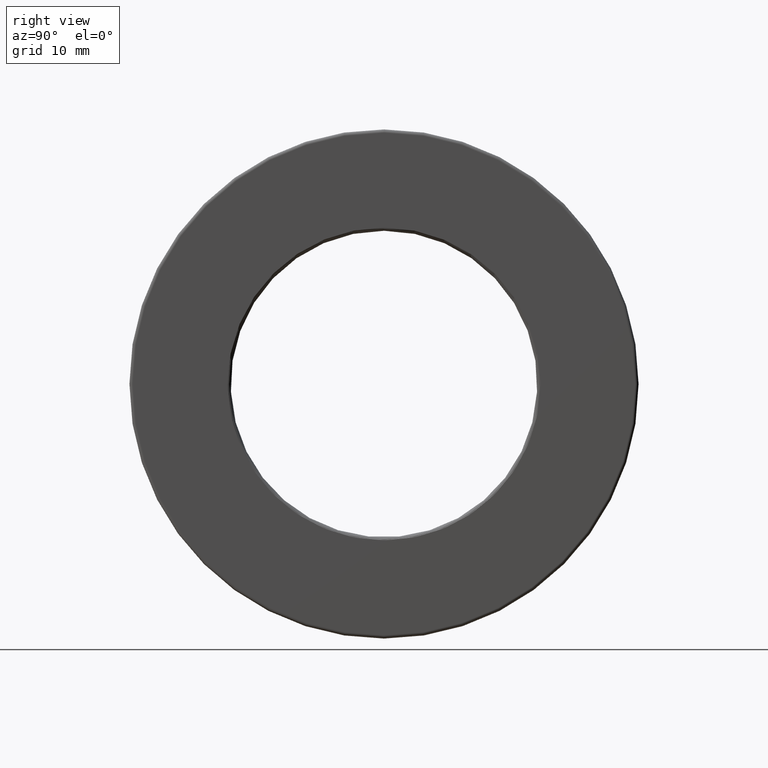
[diagram: clean part render]
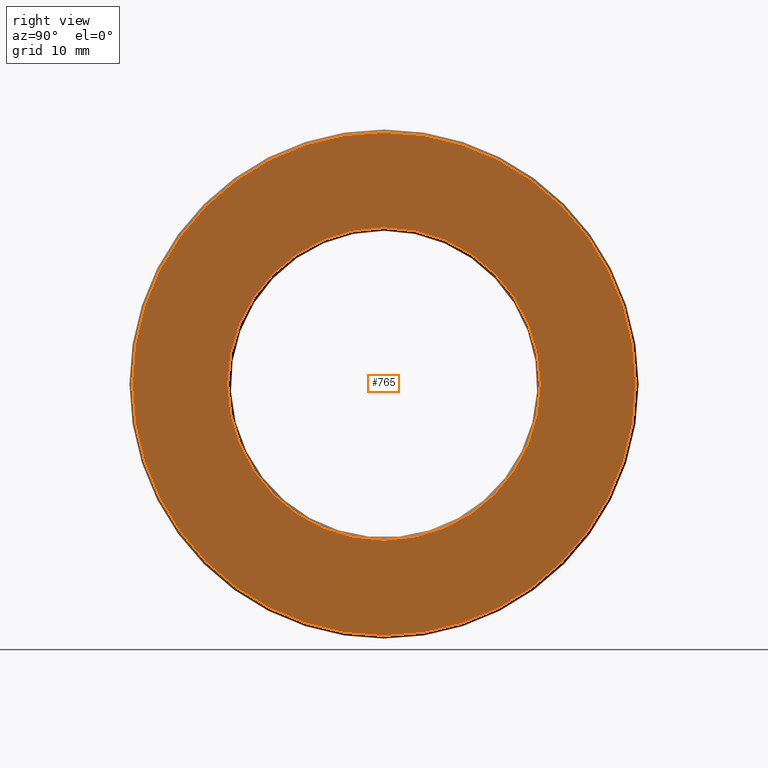
[diagram: same view with one face highlighted and labeled with its STEP entity id]
A machine part, right view. The second image highlights one B-rep face of the part: STEP entity #765.
In plain terms, the highlighted planar face has unit normal (1, 0, 0).
Its self-contained STEP definition (entity closure, byte-faithful):
#6 = CARTESIAN_POINT ( 'NONE',  ( 0.4060000000000001400, 0.0000000000000000000, 1.589375000000000900 ) ) ;
#66 = DIRECTION ( 'NONE',  ( 0.0000000000000000000, 0.0000000000000000000, 1.000000000000000000 ) ) ;
#117 = CARTESIAN_POINT ( 'NONE',  ( 0.4060000000000001400, 0.0000000000000000000, 0.9887500000000001300 ) ) ;
#145 = ORIENTED_EDGE ( 'NONE', *, *, #201, .F. ) ;
#201 = EDGE_CURVE ( 'NONE', #429, #429, #1237, .T. ) ;
#240 = EDGE_LOOP ( 'NONE', ( #1181 ) ) ;
#275 = DIRECTION ( 'NONE',  ( 1.000000000000000000, 0.0000000000000000000, 0.0000000000000000000 ) ) ;
#344 = EDGE_LOOP ( 'NONE', ( #145 ) ) ;
#370 = PLANE ( 'NONE',  #770 ) ;
#386 = CARTESIAN_POINT ( 'NONE',  ( 0.4060000000000001400, 0.0000000000000000000, 0.0000000000000000000 ) ) ;
#429 = VERTEX_POINT ( 'NONE', #6 ) ;
#472 = CARTESIAN_POINT ( 'NONE',  ( 0.4060000000000001400, 0.0000000000000000000, 0.0000000000000000000 ) ) ;
#533 = DIRECTION ( 'NONE',  ( -1.000000000000000000, -0.0000000000000000000, -0.0000000000000000000 ) ) ;
#542 = VERTEX_POINT ( 'NONE', #117 ) ;
#640 = CIRCLE ( 'NONE', #1110, 0.9887500000000001300 ) ;
#653 = FACE_OUTER_BOUND ( 'NONE', #344, .T. ) ;
#765 = ADVANCED_FACE ( 'NONE', ( #1090, #653 ), #370, .T. ) ;
#770 = AXIS2_PLACEMENT_3D ( 'NONE', #472, #275, #1187 ) ;
#1024 = AXIS2_PLACEMENT_3D ( 'NONE', #386, #1282, #66 ) ;
#1090 = FACE_BOUND ( 'NONE', #240, .T. ) ;
#1110 = AXIS2_PLACEMENT_3D ( 'NONE', #1121, #533, #1115 ) ;
#1115 = DIRECTION ( 'NONE',  ( 0.0000000000000000000, 0.0000000000000000000, 1.000000000000000000 ) ) ;
#1121 = CARTESIAN_POINT ( 'NONE',  ( 0.4060000000000001400, 0.0000000000000000000, 0.0000000000000000000 ) ) ;
#1181 = ORIENTED_EDGE ( 'NONE', *, *, #1303, .T. ) ;
#1187 = DIRECTION ( 'NONE',  ( 0.0000000000000000000, 0.0000000000000000000, -1.000000000000000000 ) ) ;
#1237 = CIRCLE ( 'NONE', #1024, 1.589375000000000900 ) ;
#1282 = DIRECTION ( 'NONE',  ( -1.000000000000000000, -0.0000000000000000000, -0.0000000000000000000 ) ) ;
#1303 = EDGE_CURVE ( 'NONE', #542, #542, #640, .T. ) ;